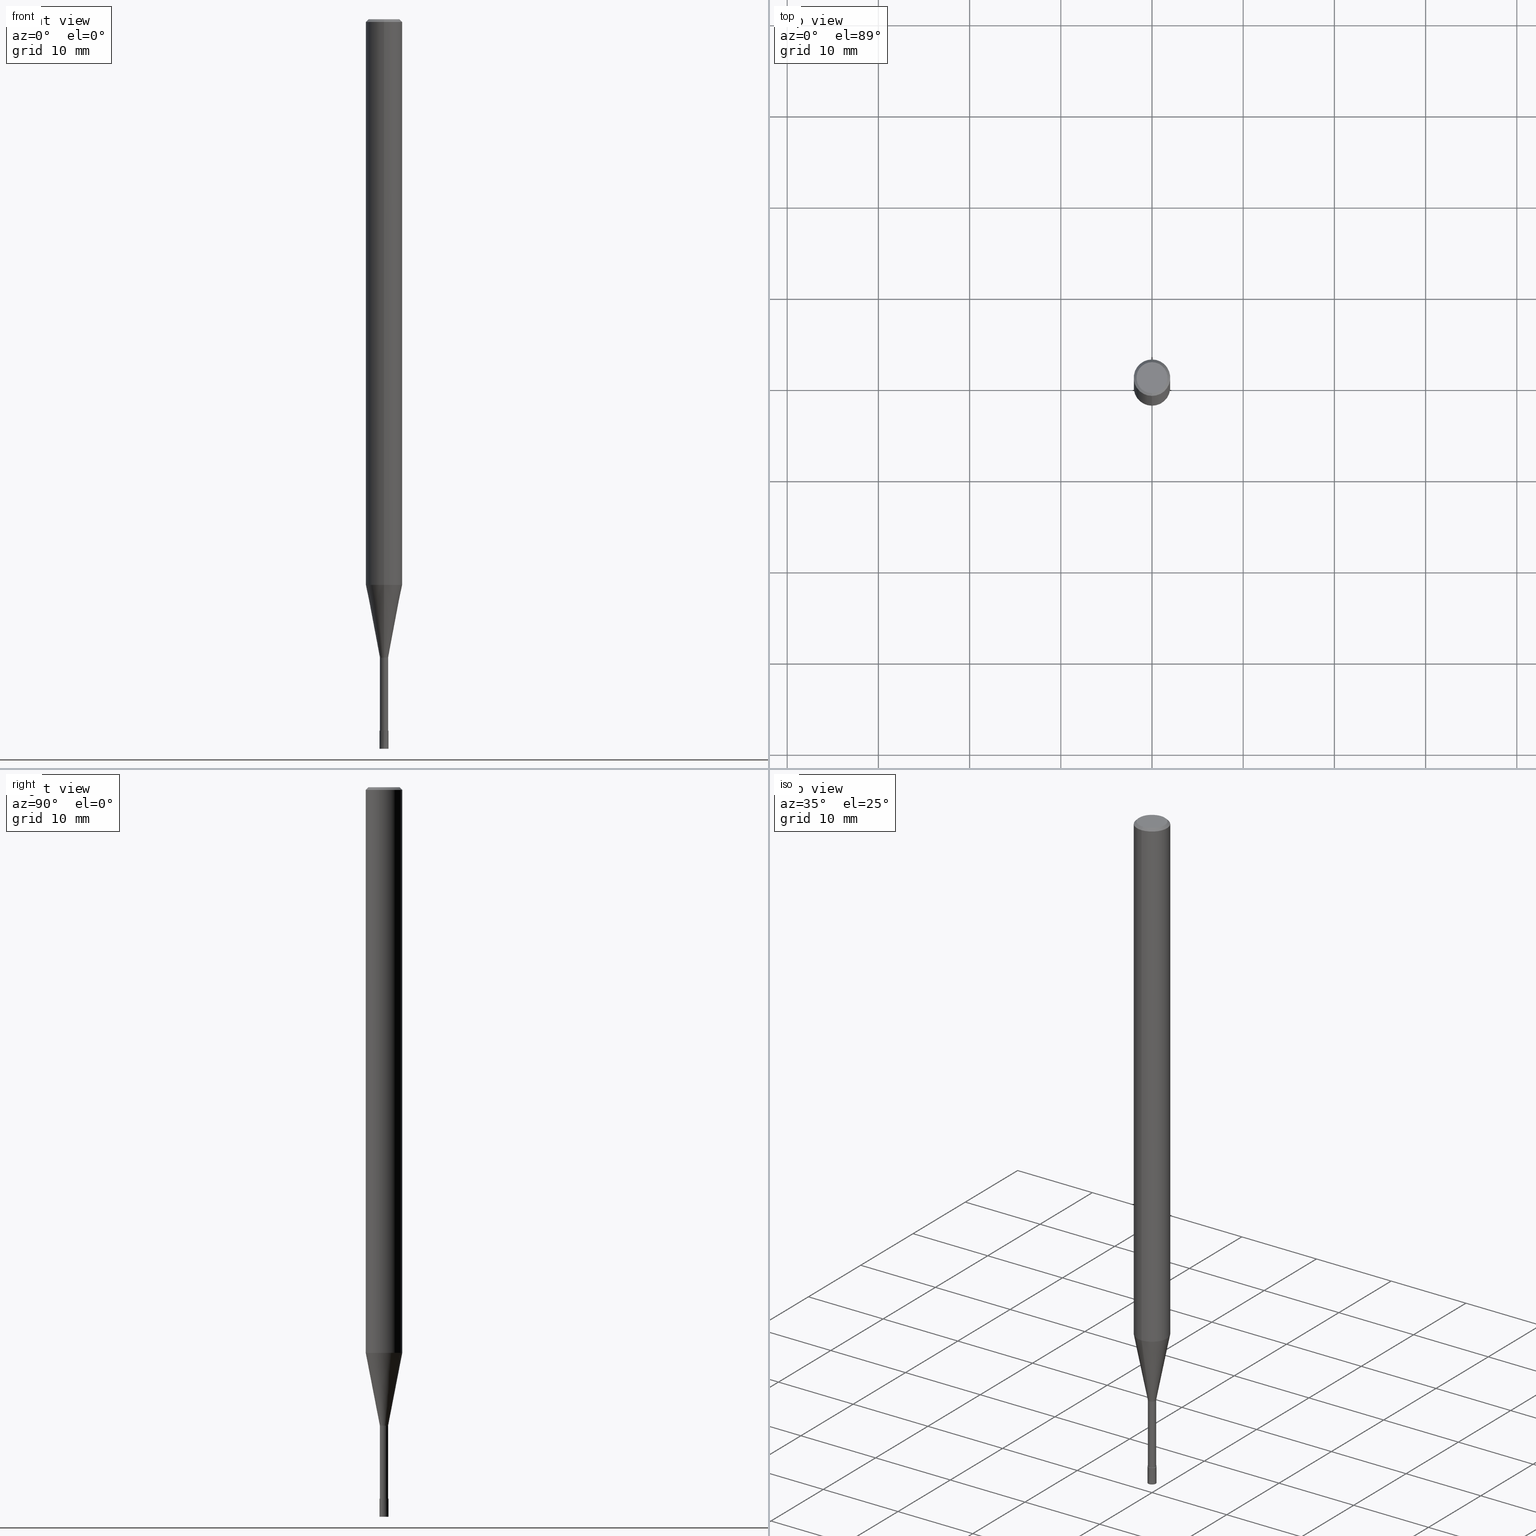
[diagram: canonical four-view strip — front | top / right | iso, engineering-drawing reading convention]
A machine part, canonical four-view strip (front | top / right | iso — engineering-drawing reading convention). The complete STEP part file that produces these views, byte-faithful:
ISO-10303-21;
HEADER;
FILE_DESCRIPTION(('no description'),'unknown implementation level');
FILE_NAME('CPRL2010-10-Huellk.stp','  ',('CIMSOURCE GmbH'),('CADClick - KiM GmbH - www.kimweb.de'),'unknown preprocess','ACIS','unknown authorization');
FILE_SCHEMA(('automotive_design'));
ENDSEC;
DATA;
#1=MECHANICAL_DESIGN_GEOMETRIC_PRESENTATION_REPRESENTATION(' ',(#14,#15,#16,#17,#18,#19,#20,#21,#22,#23,#24,#25,#26,#27,#28,#29,#30,#31,#32,#33,#34,#35,#36,#37,#38,#39,#40,#41,#42,#43,#44,#45,#46,#47,#48,#49,#50,#51,#52,#53,#54,#55,#56,#57,#58,#59,#60,#61,#62,#63,#64,#65,#66,#67,#68,#69,#70,#71,#72),#10);
#2=PRODUCT_DEFINITION_CONTEXT('',#73,'design');
#3=APPLICATION_PROTOCOL_DEFINITION('INTERNATIONAL STANDARD','automotive_design',1994,#73);
#4=PRODUCT_CATEGORY_RELATIONSHIP('NONE','NONE',#74,#75);
#5=SHAPE_DEFINITION_REPRESENTATION(#76,#77);
#6=PRODUCT_DEFINITION_CONTEXT('',#78,'design');
#7=APPLICATION_PROTOCOL_DEFINITION('INTERNATIONAL STANDARD','automotive_design',1994,#78);
#8=PRODUCT_CATEGORY_RELATIONSHIP('NONE','NONE',#79,#80);
#9=SHAPE_DEFINITION_REPRESENTATION(#81,#82);
#10= (GEOMETRIC_REPRESENTATION_CONTEXT(3)GLOBAL_UNCERTAINTY_ASSIGNED_CONTEXT((#85))GLOBAL_UNIT_ASSIGNED_CONTEXT((#87,#88,#89))REPRESENTATION_CONTEXT('NONE','WORKSPACE'));
#14=STYLED_ITEM('',(#91),#92);
#15=STYLED_ITEM('',(#93),#94);
#16=STYLED_ITEM('',(#95),#96);
#17=STYLED_ITEM('',(#97),#98);
#18=STYLED_ITEM('',(#99),#100);
#19=STYLED_ITEM('',(#101),#102);
#20=STYLED_ITEM('',(#103),#104);
#21=STYLED_ITEM('',(#105),#106);
#22=STYLED_ITEM('',(#107),#108);
#23=STYLED_ITEM('',(#109),#110);
#24=STYLED_ITEM('',(#111),#112);
#25=STYLED_ITEM('',(#113),#114);
#26=STYLED_ITEM('',(#115),#116);
#27=STYLED_ITEM('',(#117),#118);
#28=STYLED_ITEM('',(#119),#120);
#29=STYLED_ITEM('',(#121),#122);
#30=STYLED_ITEM('',(#123),#124);
#31=STYLED_ITEM('',(#125),#126);
#32=STYLED_ITEM('',(#127),#128);
#33=STYLED_ITEM('',(#129),#130);
#34=STYLED_ITEM('',(#131),#132);
#35=STYLED_ITEM('',(#133),#134);
#36=STYLED_ITEM('',(#135),#136);
#37=STYLED_ITEM('',(#137),#138);
#38=STYLED_ITEM('',(#139),#140);
#39=STYLED_ITEM('',(#141),#142);
#40=STYLED_ITEM('',(#143),#144);
#41=STYLED_ITEM('',(#145),#146);
#42=STYLED_ITEM('',(#147),#148);
#43=STYLED_ITEM('',(#149),#150);
#44=STYLED_ITEM('',(#151),#152);
#45=STYLED_ITEM('',(#153),#154);
#46=STYLED_ITEM('',(#155),#156);
#47=STYLED_ITEM('',(#157),#158);
#48=STYLED_ITEM('',(#159),#160);
#49=STYLED_ITEM('',(#161),#162);
#50=STYLED_ITEM('',(#163),#164);
#51=STYLED_ITEM('',(#165),#166);
#52=STYLED_ITEM('',(#167),#168);
#53=STYLED_ITEM('',(#169),#170);
#54=STYLED_ITEM('',(#171),#172);
#55=STYLED_ITEM('',(#173),#174);
#56=STYLED_ITEM('',(#175),#176);
#57=STYLED_ITEM('',(#177),#178);
#58=STYLED_ITEM('',(#179),#180);
#59=STYLED_ITEM('',(#181),#182);
#60=STYLED_ITEM('',(#183),#184);
#61=STYLED_ITEM('',(#185),#186);
#62=STYLED_ITEM('',(#187),#188);
#63=STYLED_ITEM('',(#189),#190);
#64=STYLED_ITEM('',(#191),#192);
#65=STYLED_ITEM('',(#193),#194);
#66=STYLED_ITEM('',(#195),#196);
#67=STYLED_ITEM('',(#197),#198);
#68=STYLED_ITEM('',(#199),#200);
#69=STYLED_ITEM('',(#201),#202);
#70=STYLED_ITEM('',(#203),#204);
#71=STYLED_ITEM('',(#205),#206);
#72=STYLED_ITEM('',(#207),#208);
#73=APPLICATION_CONTEXT(' ');
#74=PRODUCT_CATEGORY('part','NONE');
#75=PRODUCT_RELATED_PRODUCT_CATEGORY('detail',' ',(#209));
#76=PRODUCT_DEFINITION_SHAPE('NONE','NONE',#210);
#77=ADVANCED_BREP_SHAPE_REPRESENTATION('1',(#104,#211),#10);
#78=APPLICATION_CONTEXT(' ');
#79=PRODUCT_CATEGORY('part','NONE');
#80=PRODUCT_RELATED_PRODUCT_CATEGORY('detail',' ',(#212));
#81=PRODUCT_DEFINITION_SHAPE('NONE','NONE',#213);
#82=ADVANCED_BREP_SHAPE_REPRESENTATION('2',(#208,#214),#10);
#85=UNCERTAINTY_MEASURE_WITH_UNIT(LENGTH_MEASURE(1.0E-006),#87,'','');
#87= (CONVERSION_BASED_UNIT('MILLIMETRE',#217)LENGTH_UNIT()NAMED_UNIT(#220));
#88= (NAMED_UNIT(#222)PLANE_ANGLE_UNIT()SI_UNIT($,.RADIAN.));
#89= (NAMED_UNIT(#222)SOLID_ANGLE_UNIT()SI_UNIT($,.STERADIAN.));
#91=PRESENTATION_STYLE_ASSIGNMENT((#228));
#92=ADVANCED_FACE('',(#229),#230,.T.);
#93=PRESENTATION_STYLE_ASSIGNMENT((#231));
#94=EDGE_CURVE('',#122,#96,#232,.T.);
#95=PRESENTATION_STYLE_ASSIGNMENT((#233));
#96=VERTEX_POINT('',#234);
#97=PRESENTATION_STYLE_ASSIGNMENT((#235));
#98=VERTEX_POINT('',#236);
#99=PRESENTATION_STYLE_ASSIGNMENT((#237));
#100=EDGE_CURVE('',#106,#98,#238,.T.);
#101=PRESENTATION_STYLE_ASSIGNMENT((#239));
#102=ADVANCED_FACE('',(#240),#241,.T.);
#103=PRESENTATION_STYLE_ASSIGNMENT((#242));
#104=MANIFOLD_SOLID_BREP('1',#243);
#105=PRESENTATION_STYLE_ASSIGNMENT((#244));
#106=VERTEX_POINT('',#245);
#107=PRESENTATION_STYLE_ASSIGNMENT((#246));
#108=EDGE_CURVE('',#200,#96,#247,.T.);
#109=PRESENTATION_STYLE_ASSIGNMENT((#248));
#110=ADVANCED_FACE('',(#249,#250),#251,.T.);
#111=PRESENTATION_STYLE_ASSIGNMENT((#252));
#112=EDGE_CURVE('',#200,#176,#253,.T.);
#113=PRESENTATION_STYLE_ASSIGNMENT((#254));
#114=ADVANCED_FACE('',(#255),#256,.T.);
#115=PRESENTATION_STYLE_ASSIGNMENT((#257));
#116=EDGE_CURVE('',#158,#122,#258,.T.);
#117=PRESENTATION_STYLE_ASSIGNMENT((#259));
#118=EDGE_CURVE('',#164,#146,#260,.T.);
#119=PRESENTATION_STYLE_ASSIGNMENT((#261));
#120=ADVANCED_FACE('',(#262),#263,.T.);
#121=PRESENTATION_STYLE_ASSIGNMENT((#264));
#122=VERTEX_POINT('',#265);
#123=PRESENTATION_STYLE_ASSIGNMENT((#266));
#124=EDGE_CURVE('',#136,#158,#267,.T.);
#125=PRESENTATION_STYLE_ASSIGNMENT((#268));
#126=ADVANCED_FACE('',(#269),#270,.T.);
#127=PRESENTATION_STYLE_ASSIGNMENT((#271));
#128=EDGE_CURVE('',#182,#146,#272,.T.);
#129=PRESENTATION_STYLE_ASSIGNMENT((#273));
#130=ADVANCED_FACE('',(#274),#275,.T.);
#131=PRESENTATION_STYLE_ASSIGNMENT((#276));
#132=EDGE_CURVE('',#176,#200,#277,.T.);
#133=PRESENTATION_STYLE_ASSIGNMENT((#278));
#134=EDGE_CURVE('',#204,#106,#279,.T.);
#135=PRESENTATION_STYLE_ASSIGNMENT((#280));
#136=VERTEX_POINT('',#281);
#137=PRESENTATION_STYLE_ASSIGNMENT((#282));
#138=VERTEX_POINT('',#283);
#139=PRESENTATION_STYLE_ASSIGNMENT((#284));
#140=EDGE_CURVE('',#204,#206,#285,.T.);
#141=PRESENTATION_STYLE_ASSIGNMENT((#286));
#142=EDGE_CURVE('',#182,#184,#287,.T.);
#143=PRESENTATION_STYLE_ASSIGNMENT((#288));
#144=ADVANCED_FACE('',(#289),#290,.T.);
#145=PRESENTATION_STYLE_ASSIGNMENT((#291));
#146=VERTEX_POINT('',#292);
#147=PRESENTATION_STYLE_ASSIGNMENT((#293));
#148=VERTEX_POINT('',#294);
#149=PRESENTATION_STYLE_ASSIGNMENT((#295));
#150=EDGE_CURVE('',#206,#204,#296,.T.);
#151=PRESENTATION_STYLE_ASSIGNMENT((#297));
#152=ADVANCED_FACE('',(#298),#299,.T.);
#153=PRESENTATION_STYLE_ASSIGNMENT((#300));
#154=EDGE_CURVE('',#148,#138,#301,.T.);
#155=PRESENTATION_STYLE_ASSIGNMENT((#302));
#156=ADVANCED_FACE('',(#303),#304,.T.);
#157=PRESENTATION_STYLE_ASSIGNMENT((#305));
#158=VERTEX_POINT('',#306);
#159=PRESENTATION_STYLE_ASSIGNMENT((#307));
#160=EDGE_CURVE('',#122,#176,#308,.T.);
#161=PRESENTATION_STYLE_ASSIGNMENT((#309));
#162=EDGE_CURVE('',#146,#148,#310,.T.);
#163=PRESENTATION_STYLE_ASSIGNMENT((#311));
#164=VERTEX_POINT('',#312);
#165=PRESENTATION_STYLE_ASSIGNMENT((#313));
#166=EDGE_CURVE('',#138,#182,#314,.T.);
#167=PRESENTATION_STYLE_ASSIGNMENT((#315));
#168=ADVANCED_FACE('',(#316),#317,.T.);
#169=PRESENTATION_STYLE_ASSIGNMENT((#318));
#170=EDGE_CURVE('',#96,#122,#319,.T.);
#171=PRESENTATION_STYLE_ASSIGNMENT((#320));
#172=ADVANCED_FACE('',(#321),#322,.T.);
#173=PRESENTATION_STYLE_ASSIGNMENT((#323));
#174=EDGE_CURVE('',#158,#136,#324,.T.);
#175=PRESENTATION_STYLE_ASSIGNMENT((#325));
#176=VERTEX_POINT('',#326);
#177=PRESENTATION_STYLE_ASSIGNMENT((#327));
#178=ADVANCED_FACE('',(#328),#329,.T.);
#179=PRESENTATION_STYLE_ASSIGNMENT((#330));
#180=ADVANCED_FACE('',(#331),#332,.T.);
#181=PRESENTATION_STYLE_ASSIGNMENT((#333));
#182=VERTEX_POINT('',#334);
#183=PRESENTATION_STYLE_ASSIGNMENT((#335));
#184=VERTEX_POINT('',#336);
#185=PRESENTATION_STYLE_ASSIGNMENT((#337));
#186=EDGE_CURVE('',#164,#184,#338,.T.);
#187=PRESENTATION_STYLE_ASSIGNMENT((#339));
#188=EDGE_CURVE('',#138,#148,#340,.T.);
#189=PRESENTATION_STYLE_ASSIGNMENT((#341));
#190=EDGE_CURVE('',#98,#206,#342,.T.);
#191=PRESENTATION_STYLE_ASSIGNMENT((#343));
#192=EDGE_CURVE('',#98,#106,#344,.T.);
#193=PRESENTATION_STYLE_ASSIGNMENT((#345));
#194=ADVANCED_FACE('',(#346),#347,.T.);
#195=PRESENTATION_STYLE_ASSIGNMENT((#348));
#196=EDGE_CURVE('',#96,#136,#349,.T.);
#197=PRESENTATION_STYLE_ASSIGNMENT((#350));
#198=EDGE_CURVE('',#146,#182,#351,.T.);
#199=PRESENTATION_STYLE_ASSIGNMENT((#352));
#200=VERTEX_POINT('',#353);
#201=PRESENTATION_STYLE_ASSIGNMENT((#354));
#202=EDGE_CURVE('',#184,#164,#355,.T.);
#203=PRESENTATION_STYLE_ASSIGNMENT((#356));
#204=VERTEX_POINT('',#357);
#205=PRESENTATION_STYLE_ASSIGNMENT((#358));
#206=VERTEX_POINT('',#359);
#207=PRESENTATION_STYLE_ASSIGNMENT((#360));
#208=MANIFOLD_SOLID_BREP('2',#361);
#209=PRODUCT('1','1','PART-1-DESC',(#362));
#210=PRODUCT_DEFINITION('NONE','NONE',#363,#2);
#211=AXIS2_PLACEMENT_3D('',#364,#365,#366);
#212=PRODUCT('2','2','PART-2-DESC',(#367));
#213=PRODUCT_DEFINITION('NONE','NONE',#368,#6);
#214=AXIS2_PLACEMENT_3D('',#369,#370,#371);
#217=LENGTH_MEASURE_WITH_UNIT(LENGTH_MEASURE(1.0),#372);
#220=DIMENSIONAL_EXPONENTS(1.0,0.0,0.0,0.0,0.0,0.0,0.0);
#222=DIMENSIONAL_EXPONENTS(0.0,0.0,0.0,0.0,0.0,0.0,0.0);
#228=SURFACE_STYLE_USAGE(.BOTH.,#373);
#229=FACE_OUTER_BOUND('',#374,.T.);
#230=CYLINDRICAL_SURFACE('',#375,0.44995);
#231=CURVE_STYLE('',#376,POSITIVE_LENGTH_MEASURE(1.0E-006),#377);
#232=CIRCLE('',#378,0.44995);
#233=POINT_STYLE(' ',#379,POSITIVE_LENGTH_MEASURE(1.0E-006),#380);
#234=CARTESIAN_POINT('',(0.0,0.44995,-70.0));
#235=POINT_STYLE(' ',#381,POSITIVE_LENGTH_MEASURE(1.0E-006),#382);
#236=CARTESIAN_POINT('',(6.12303176911189E-017,-0.5,-80.0));
#237=CURVE_STYLE('',#383,POSITIVE_LENGTH_MEASURE(1.0E-006),#384);
#238=CIRCLE('',#385,0.5);
#239=SURFACE_STYLE_USAGE(.BOTH.,#386);
#240=FACE_OUTER_BOUND('',#387,.T.);
#241=PLANE('',#388);
#242=SURFACE_STYLE_USAGE(.BOTH.,#389);
#243=CLOSED_SHELL('',(#92,#194,#180,#156,#110,#168,#126,#172,#144,#120,#178));
#244=POINT_STYLE(' ',#390,POSITIVE_LENGTH_MEASURE(1.0E-006),#391);
#245=CARTESIAN_POINT('',(0.0,0.5,-80.0));
#246=CURVE_STYLE('',#392,POSITIVE_LENGTH_MEASURE(1.0E-006),#393);
#247=LINE('',#394,#395);
#248=SURFACE_STYLE_USAGE(.BOTH.,#396);
#249=FACE_OUTER_BOUND('',#397,.T.);
#250=FACE_BOUND('',#398,.T.);
#251=PLANE('',#399);
#252=CURVE_STYLE('',#400,POSITIVE_LENGTH_MEASURE(1.0E-006),#401);
#253=CIRCLE('',#402,1.99995);
#254=SURFACE_STYLE_USAGE(.BOTH.,#403);
#255=FACE_OUTER_BOUND('',#404,.T.);
#256=CONICAL_SURFACE('',#405,0.49995,4.99999999583278E-005);
#257=CURVE_STYLE('',#406,POSITIVE_LENGTH_MEASURE(1.0E-006),#407);
#258=LINE('',#408,#409);
#259=CURVE_STYLE('',#410,POSITIVE_LENGTH_MEASURE(1.0E-006),#411);
#260=LINE('',#412,#413);
#261=SURFACE_STYLE_USAGE(.BOTH.,#414);
#262=FACE_OUTER_BOUND('',#415,.T.);
#263=CYLINDRICAL_SURFACE('',#416,0.44995);
#264=POINT_STYLE(' ',#417,POSITIVE_LENGTH_MEASURE(1.0E-006),#418);
#265=CARTESIAN_POINT('',(5.51011628902379E-017,-0.44995,-70.0));
#266=CURVE_STYLE('',#419,POSITIVE_LENGTH_MEASURE(1.0E-006),#420);
#267=CIRCLE('',#421,0.44995);
#268=SURFACE_STYLE_USAGE(.BOTH.,#422);
#269=FACE_OUTER_BOUND('',#423,.T.);
#270=CONICAL_SURFACE('',#424,1.85,0.785398163397453);
#271=CURVE_STYLE('',#425,POSITIVE_LENGTH_MEASURE(1.0E-006),#426);
#272=CIRCLE('',#427,2.0);
#273=SURFACE_STYLE_USAGE(.BOTH.,#428);
#274=FACE_OUTER_BOUND('',#429,.T.);
#275=PLANE('',#430);
#276=CURVE_STYLE('',#431,POSITIVE_LENGTH_MEASURE(1.0E-006),#432);
#277=CIRCLE('',#433,1.99995);
#278=CURVE_STYLE('',#434,POSITIVE_LENGTH_MEASURE(1.0E-006),#435);
#279=LINE('',#436,#437);
#280=POINT_STYLE(' ',#438,POSITIVE_LENGTH_MEASURE(1.0E-006),#439);
#281=CARTESIAN_POINT('',(0.0,0.44995,-78.0));
#282=POINT_STYLE(' ',#440,POSITIVE_LENGTH_MEASURE(1.0E-006),#441);
#283=CARTESIAN_POINT('',(2.44921270764475E-016,-2.0,-62.026));
#284=CURVE_STYLE('',#442,POSITIVE_LENGTH_MEASURE(1.0E-006),#443);
#285=CIRCLE('',#444,0.4999);
#286=CURVE_STYLE('',#445,POSITIVE_LENGTH_MEASURE(1.0E-006),#446);
#287=LINE('',#447,#448);
#288=SURFACE_STYLE_USAGE(.BOTH.,#449);
#289=FACE_OUTER_BOUND('',#450,.T.);
#290=CONICAL_SURFACE('',#451,1.22495,0.191987597119561);
#291=POINT_STYLE(' ',#452,POSITIVE_LENGTH_MEASURE(1.0E-006),#453);
#292=CARTESIAN_POINT('',(0.0,2.0,-0.299999999999997));
#293=POINT_STYLE(' ',#454,POSITIVE_LENGTH_MEASURE(1.0E-006),#455);
#294=CARTESIAN_POINT('',(0.0,2.0,-62.026));
#295=CURVE_STYLE('',#456,POSITIVE_LENGTH_MEASURE(1.0E-006),#457);
#296=CIRCLE('',#458,0.4999);
#297=SURFACE_STYLE_USAGE(.BOTH.,#459);
#298=FACE_OUTER_BOUND('',#460,.T.);
#299=CONICAL_SURFACE('',#461,0.49995,4.99999999583278E-005);
#300=CURVE_STYLE('',#462,POSITIVE_LENGTH_MEASURE(1.0E-006),#463);
#301=CIRCLE('',#464,2.0);
#302=SURFACE_STYLE_USAGE(.BOTH.,#465);
#303=FACE_OUTER_BOUND('',#466,.T.);
#304=CONICAL_SURFACE('',#467,1.85,0.785398163397453);
#305=POINT_STYLE(' ',#468,POSITIVE_LENGTH_MEASURE(1.0E-006),#469);
#306=CARTESIAN_POINT('',(5.51011628902379E-017,-0.44995,-78.0));
#307=CURVE_STYLE('',#470,POSITIVE_LENGTH_MEASURE(1.0E-006),#471);
#308=LINE('',#472,#473);
#309=CURVE_STYLE('',#474,POSITIVE_LENGTH_MEASURE(1.0E-006),#475);
#310=LINE('',#476,#477);
#311=POINT_STYLE(' ',#478,POSITIVE_LENGTH_MEASURE(1.0E-006),#479);
#312=CARTESIAN_POINT('',(0.0,1.7,0.0));
#313=CURVE_STYLE('',#480,POSITIVE_LENGTH_MEASURE(1.0E-006),#481);
#314=LINE('',#482,#483);
#315=SURFACE_STYLE_USAGE(.BOTH.,#484);
#316=FACE_OUTER_BOUND('',#485,.T.);
#317=PLANE('',#486);
#318=CURVE_STYLE('',#487,POSITIVE_LENGTH_MEASURE(1.0E-006),#488);
#319=CIRCLE('',#489,0.44995);
#320=SURFACE_STYLE_USAGE(.BOTH.,#490);
#321=FACE_OUTER_BOUND('',#491,.T.);
#322=CYLINDRICAL_SURFACE('',#492,2.0);
#323=CURVE_STYLE('',#493,POSITIVE_LENGTH_MEASURE(1.0E-006),#494);
#324=CIRCLE('',#495,0.44995);
#325=POINT_STYLE(' ',#496,POSITIVE_LENGTH_MEASURE(1.0E-006),#497);
#326=CARTESIAN_POINT('',(2.44915147732706E-016,-1.99995,-62.026));
#327=SURFACE_STYLE_USAGE(.BOTH.,#498);
#328=FACE_OUTER_BOUND('',#499,.T.);
#329=PLANE('',#500);
#330=SURFACE_STYLE_USAGE(.BOTH.,#501);
#331=FACE_OUTER_BOUND('',#502,.T.);
#332=CYLINDRICAL_SURFACE('',#503,2.0);
#333=POINT_STYLE(' ',#504,POSITIVE_LENGTH_MEASURE(1.0E-006),#505);
#334=CARTESIAN_POINT('',(2.44921270764475E-016,-2.0,-0.299999999999997));
#335=POINT_STYLE(' ',#506,POSITIVE_LENGTH_MEASURE(1.0E-006),#507);
#336=CARTESIAN_POINT('',(2.08183080149804E-016,-1.7,0.0));
#337=CURVE_STYLE('',#508,POSITIVE_LENGTH_MEASURE(1.0E-006),#509);
#338=CIRCLE('',#510,1.7);
#339=CURVE_STYLE('',#511,POSITIVE_LENGTH_MEASURE(1.0E-006),#512);
#340=CIRCLE('',#513,2.0);
#341=CURVE_STYLE('',#514,POSITIVE_LENGTH_MEASURE(1.0E-006),#515);
#342=LINE('',#516,#517);
#343=CURVE_STYLE('',#518,POSITIVE_LENGTH_MEASURE(1.0E-006),#519);
#344=CIRCLE('',#520,0.5);
#345=SURFACE_STYLE_USAGE(.BOTH.,#521);
#346=FACE_OUTER_BOUND('',#522,.T.);
#347=CONICAL_SURFACE('',#523,1.22495,0.191987597119561);
#348=CURVE_STYLE('',#524,POSITIVE_LENGTH_MEASURE(1.0E-006),#525);
#349=LINE('',#526,#527);
#350=CURVE_STYLE('',#528,POSITIVE_LENGTH_MEASURE(1.0E-006),#529);
#351=CIRCLE('',#530,2.0);
#352=POINT_STYLE(' ',#531,POSITIVE_LENGTH_MEASURE(1.0E-006),#532);
#353=CARTESIAN_POINT('',(0.0,1.99995,-62.026));
#354=CURVE_STYLE('',#533,POSITIVE_LENGTH_MEASURE(1.0E-006),#534);
#355=CIRCLE('',#535,1.7);
#356=POINT_STYLE(' ',#536,POSITIVE_LENGTH_MEASURE(1.0E-006),#537);
#357=CARTESIAN_POINT('',(0.0,0.4999,-78.0));
#358=POINT_STYLE(' ',#538,POSITIVE_LENGTH_MEASURE(1.0E-006),#539);
#359=CARTESIAN_POINT('',(6.12180716275807E-017,-0.4999,-78.0));
#360=SURFACE_STYLE_USAGE(.BOTH.,#540);
#361=CLOSED_SHELL('',(#152,#130,#114,#102));
#362=PRODUCT_CONTEXT('',#73,'mechanical');
#363=PRODUCT_DEFINITION_FORMATION_WITH_SPECIFIED_SOURCE(' ','NONE',#209,.NOT_KNOWN.);
#364=CARTESIAN_POINT('',(0.0,0.0,0.0));
#365=DIRECTION('',(0.0,0.0,1.0));
#366=DIRECTION('',(1.0,0.0,0.0));
#367=PRODUCT_CONTEXT('',#78,'mechanical');
#368=PRODUCT_DEFINITION_FORMATION_WITH_SPECIFIED_SOURCE(' ','NONE',#212,.NOT_KNOWN.);
#369=CARTESIAN_POINT('',(0.0,0.0,0.0));
#370=DIRECTION('',(0.0,0.0,1.0));
#371=DIRECTION('',(1.0,0.0,0.0));
#372= (NAMED_UNIT(#220)LENGTH_UNIT()SI_UNIT(.MILLI.,.METRE.));
#373=SURFACE_SIDE_STYLE('',(#542));
#374=EDGE_LOOP('',(#543,#544,#545,#546));
#375=AXIS2_PLACEMENT_3D('',#547,#548,#549);
#376=DRAUGHTING_PRE_DEFINED_CURVE_FONT('continuous');
#377=COLOUR_RGB('',0.498039215803146,0.498039215803146,0.498039215803146);
#378=AXIS2_PLACEMENT_3D('',#550,#551,#552);
#379=PRE_DEFINED_MARKER('');
#380=COLOUR_RGB('',0.498039215803146,0.498039215803146,0.498039215803146);
#381=PRE_DEFINED_MARKER('');
#382=COLOUR_RGB('',0.800000011920929,0.800000011920929,0.800000011920929);
#383=DRAUGHTING_PRE_DEFINED_CURVE_FONT('continuous');
#384=COLOUR_RGB('',0.800000011920929,0.800000011920929,0.800000011920929);
#385=AXIS2_PLACEMENT_3D('',#553,#554,#555);
#386=SURFACE_SIDE_STYLE('',(#556));
#387=EDGE_LOOP('',(#557,#558));
#388=AXIS2_PLACEMENT_3D('',#559,#560,#561);
#389=SURFACE_SIDE_STYLE('',(#562));
#390=PRE_DEFINED_MARKER('');
#391=COLOUR_RGB('',0.800000011920929,0.800000011920929,0.800000011920929);
#392=DRAUGHTING_PRE_DEFINED_CURVE_FONT('continuous');
#393=COLOUR_RGB('',0.498039215803146,0.498039215803146,0.498039215803146);
#394=CARTESIAN_POINT('',(-1.50008155311472E-016,1.22495,-66.013));
#395=VECTOR('',#563,1.0);
#396=SURFACE_SIDE_STYLE('',(#564));
#397=EDGE_LOOP('',(#565,#566));
#398=EDGE_LOOP('',(#567,#568));
#399=AXIS2_PLACEMENT_3D('',#569,#570,#571);
#400=DRAUGHTING_PRE_DEFINED_CURVE_FONT('continuous');
#401=COLOUR_RGB('',0.498039215803146,0.498039215803146,0.498039215803146);
#402=AXIS2_PLACEMENT_3D('',#572,#573,#574);
#403=SURFACE_SIDE_STYLE('',(#575));
#404=EDGE_LOOP('',(#576,#577,#578,#579));
#405=AXIS2_PLACEMENT_3D('',#580,#581,#582);
#406=DRAUGHTING_PRE_DEFINED_CURVE_FONT('continuous');
#407=COLOUR_RGB('',0.498039215803146,0.498039215803146,0.498039215803146);
#408=CARTESIAN_POINT('',(5.51011628902379E-017,-0.44995,-74.0));
#409=VECTOR('',#583,1.0);
#410=DRAUGHTING_PRE_DEFINED_CURVE_FONT('continuous');
#411=COLOUR_RGB('',0.498039215803146,0.498039215803146,0.498039215803146);
#412=CARTESIAN_POINT('',(-2.2655217545714E-016,1.85,-0.149999999999999));
#413=VECTOR('',#584,1.0);
#414=SURFACE_SIDE_STYLE('',(#585));
#415=EDGE_LOOP('',(#586,#587,#588,#589));
#416=AXIS2_PLACEMENT_3D('',#590,#591,#592);
#417=PRE_DEFINED_MARKER('');
#418=COLOUR_RGB('',0.498039215803146,0.498039215803146,0.498039215803146);
#419=DRAUGHTING_PRE_DEFINED_CURVE_FONT('continuous');
#420=COLOUR_RGB('',0.498039215803146,0.498039215803146,0.498039215803146);
#421=AXIS2_PLACEMENT_3D('',#593,#594,#595);
#422=SURFACE_SIDE_STYLE('',(#596));
#423=EDGE_LOOP('',(#597,#598,#599,#600));
#424=AXIS2_PLACEMENT_3D('',#601,#602,#603);
#425=DRAUGHTING_PRE_DEFINED_CURVE_FONT('continuous');
#426=COLOUR_RGB('',0.498039215803146,0.498039215803146,0.498039215803146);
#427=AXIS2_PLACEMENT_3D('',#604,#605,#606);
#428=SURFACE_SIDE_STYLE('',(#607));
#429=EDGE_LOOP('',(#608,#609));
#430=AXIS2_PLACEMENT_3D('',#610,#611,#612);
#431=DRAUGHTING_PRE_DEFINED_CURVE_FONT('continuous');
#432=COLOUR_RGB('',0.498039215803146,0.498039215803146,0.498039215803146);
#433=AXIS2_PLACEMENT_3D('',#613,#614,#615);
#434=DRAUGHTING_PRE_DEFINED_CURVE_FONT('continuous');
#435=COLOUR_RGB('',0.800000011920929,0.800000011920929,0.800000011920929);
#436=CARTESIAN_POINT('',(-6.12241946593498E-017,0.49995,-79.0));
#437=VECTOR('',#616,1.0);
#438=PRE_DEFINED_MARKER('');
#439=COLOUR_RGB('',0.498039215803146,0.498039215803146,0.498039215803146);
#440=PRE_DEFINED_MARKER('');
#441=COLOUR_RGB('',0.498039215803146,0.498039215803146,0.498039215803146);
#442=DRAUGHTING_PRE_DEFINED_CURVE_FONT('continuous');
#443=COLOUR_RGB('',0.800000011920929,0.800000011920929,0.800000011920929);
#444=AXIS2_PLACEMENT_3D('',#617,#618,#619);
#445=DRAUGHTING_PRE_DEFINED_CURVE_FONT('continuous');
#446=COLOUR_RGB('',0.498039215803146,0.498039215803146,0.498039215803146);
#447=CARTESIAN_POINT('',(2.2655217545714E-016,-1.85,-0.149999999999999));
#448=VECTOR('',#620,1.0);
#449=SURFACE_SIDE_STYLE('',(#621));
#450=EDGE_LOOP('',(#622,#623,#624,#625));
#451=AXIS2_PLACEMENT_3D('',#626,#627,#628);
#452=PRE_DEFINED_MARKER('');
#453=COLOUR_RGB('',0.498039215803146,0.498039215803146,0.498039215803146);
#454=PRE_DEFINED_MARKER('');
#455=COLOUR_RGB('',0.498039215803146,0.498039215803146,0.498039215803146);
#456=DRAUGHTING_PRE_DEFINED_CURVE_FONT('continuous');
#457=COLOUR_RGB('',0.800000011920929,0.800000011920929,0.800000011920929);
#458=AXIS2_PLACEMENT_3D('',#629,#630,#631);
#459=SURFACE_SIDE_STYLE('',(#632));
#460=EDGE_LOOP('',(#633,#634,#635,#636));
#461=AXIS2_PLACEMENT_3D('',#637,#638,#639);
#462=DRAUGHTING_PRE_DEFINED_CURVE_FONT('continuous');
#463=COLOUR_RGB('',0.498039215803146,0.498039215803146,0.498039215803146);
#464=AXIS2_PLACEMENT_3D('',#640,#641,#642);
#465=SURFACE_SIDE_STYLE('',(#643));
#466=EDGE_LOOP('',(#644,#645,#646,#647));
#467=AXIS2_PLACEMENT_3D('',#648,#649,#650);
#468=PRE_DEFINED_MARKER('');
#469=COLOUR_RGB('',0.498039215803146,0.498039215803146,0.498039215803146);
#470=DRAUGHTING_PRE_DEFINED_CURVE_FONT('continuous');
#471=COLOUR_RGB('',0.498039215803146,0.498039215803146,0.498039215803146);
#472=CARTESIAN_POINT('',(1.50008155311472E-016,-1.22495,-66.013));
#473=VECTOR('',#651,1.0);
#474=DRAUGHTING_PRE_DEFINED_CURVE_FONT('continuous');
#475=COLOUR_RGB('',0.498039215803146,0.498039215803146,0.498039215803146);
#476=CARTESIAN_POINT('',(-2.44921270764475E-016,2.0,-31.163));
#477=VECTOR('',#652,1.0);
#478=PRE_DEFINED_MARKER('');
#479=COLOUR_RGB('',0.498039215803146,0.498039215803146,0.498039215803146);
#480=DRAUGHTING_PRE_DEFINED_CURVE_FONT('continuous');
#481=COLOUR_RGB('',0.498039215803146,0.498039215803146,0.498039215803146);
#482=CARTESIAN_POINT('',(2.44921270764475E-016,-2.0,-31.163));
#483=VECTOR('',#653,1.0);
#484=SURFACE_SIDE_STYLE('',(#654));
#485=EDGE_LOOP('',(#655,#656));
#486=AXIS2_PLACEMENT_3D('',#657,#658,#659);
#487=DRAUGHTING_PRE_DEFINED_CURVE_FONT('continuous');
#488=COLOUR_RGB('',0.498039215803146,0.498039215803146,0.498039215803146);
#489=AXIS2_PLACEMENT_3D('',#660,#661,#662);
#490=SURFACE_SIDE_STYLE('',(#663));
#491=EDGE_LOOP('',(#664,#665,#666,#667));
#492=AXIS2_PLACEMENT_3D('',#668,#669,#670);
#493=DRAUGHTING_PRE_DEFINED_CURVE_FONT('continuous');
#494=COLOUR_RGB('',0.498039215803146,0.498039215803146,0.498039215803146);
#495=AXIS2_PLACEMENT_3D('',#671,#672,#673);
#496=PRE_DEFINED_MARKER('');
#497=COLOUR_RGB('',0.498039215803146,0.498039215803146,0.498039215803146);
#498=SURFACE_SIDE_STYLE('',(#674));
#499=EDGE_LOOP('',(#675,#676));
#500=AXIS2_PLACEMENT_3D('',#677,#678,#679);
#501=SURFACE_SIDE_STYLE('',(#680));
#502=EDGE_LOOP('',(#681,#682,#683,#684));
#503=AXIS2_PLACEMENT_3D('',#685,#686,#687);
#504=PRE_DEFINED_MARKER('');
#505=COLOUR_RGB('',0.498039215803146,0.498039215803146,0.498039215803146);
#506=PRE_DEFINED_MARKER('');
#507=COLOUR_RGB('',0.498039215803146,0.498039215803146,0.498039215803146);
#508=DRAUGHTING_PRE_DEFINED_CURVE_FONT('continuous');
#509=COLOUR_RGB('',0.498039215803146,0.498039215803146,0.498039215803146);
#510=AXIS2_PLACEMENT_3D('',#688,#689,#690);
#511=DRAUGHTING_PRE_DEFINED_CURVE_FONT('continuous');
#512=COLOUR_RGB('',0.498039215803146,0.498039215803146,0.498039215803146);
#513=AXIS2_PLACEMENT_3D('',#691,#692,#693);
#514=DRAUGHTING_PRE_DEFINED_CURVE_FONT('continuous');
#515=COLOUR_RGB('',0.800000011920929,0.800000011920929,0.800000011920929);
#516=CARTESIAN_POINT('',(6.12241946593498E-017,-0.49995,-79.0));
#517=VECTOR('',#694,1.0);
#518=DRAUGHTING_PRE_DEFINED_CURVE_FONT('continuous');
#519=COLOUR_RGB('',0.800000011920929,0.800000011920929,0.800000011920929);
#520=AXIS2_PLACEMENT_3D('',#695,#696,#697);
#521=SURFACE_SIDE_STYLE('',(#698));
#522=EDGE_LOOP('',(#699,#700,#701,#702));
#523=AXIS2_PLACEMENT_3D('',#703,#704,#705);
#524=DRAUGHTING_PRE_DEFINED_CURVE_FONT('continuous');
#525=COLOUR_RGB('',0.498039215803146,0.498039215803146,0.498039215803146);
#526=CARTESIAN_POINT('',(-5.51011628902379E-017,0.44995,-74.0));
#527=VECTOR('',#706,1.0);
#528=DRAUGHTING_PRE_DEFINED_CURVE_FONT('continuous');
#529=COLOUR_RGB('',0.498039215803146,0.498039215803146,0.498039215803146);
#530=AXIS2_PLACEMENT_3D('',#707,#708,#709);
#531=PRE_DEFINED_MARKER('');
#532=COLOUR_RGB('',0.498039215803146,0.498039215803146,0.498039215803146);
#533=DRAUGHTING_PRE_DEFINED_CURVE_FONT('continuous');
#534=COLOUR_RGB('',0.498039215803146,0.498039215803146,0.498039215803146);
#535=AXIS2_PLACEMENT_3D('',#710,#711,#712);
#536=PRE_DEFINED_MARKER('');
#537=COLOUR_RGB('',0.800000011920929,0.800000011920929,0.800000011920929);
#538=PRE_DEFINED_MARKER('');
#539=COLOUR_RGB('',0.800000011920929,0.800000011920929,0.800000011920929);
#540=SURFACE_SIDE_STYLE('',(#713));
#542=SURFACE_STYLE_FILL_AREA(#714);
#543=ORIENTED_EDGE('',*,*,#196,.F.);
#544=ORIENTED_EDGE('',*,*,#170,.T.);
#545=ORIENTED_EDGE('',*,*,#116,.F.);
#546=ORIENTED_EDGE('',*,*,#124,.F.);
#547=CARTESIAN_POINT('',(0.0,0.0,-74.0));
#548=DIRECTION('',(-0.0,-0.0,1.0));
#549=DIRECTION('',(0.0,1.0,0.0));
#550=CARTESIAN_POINT('',(0.0,0.0,-70.0));
#551=DIRECTION('',(0.0,0.0,-1.0));
#552=DIRECTION('',(0.0,1.0,0.0));
#553=CARTESIAN_POINT('',(0.0,0.0,-80.0));
#554=DIRECTION('',(0.0,0.0,-1.0));
#555=DIRECTION('',(0.0,1.0,0.0));
#556=SURFACE_STYLE_FILL_AREA(#715);
#557=ORIENTED_EDGE('',*,*,#100,.T.);
#558=ORIENTED_EDGE('',*,*,#192,.T.);
#559=CARTESIAN_POINT('',(0.0,0.2475,-80.0));
#560=DIRECTION('',(0.0,0.0,-1.0));
#561=DIRECTION('',(0.0,1.0,0.0));
#562=SURFACE_STYLE_FILL_AREA(#716);
#563=DIRECTION('',(2.33667566290819E-017,-0.190810349433081,-0.981626920244767));
#564=SURFACE_STYLE_FILL_AREA(#717);
#565=ORIENTED_EDGE('',*,*,#154,.T.);
#566=ORIENTED_EDGE('',*,*,#188,.T.);
#567=ORIENTED_EDGE('',*,*,#112,.F.);
#568=ORIENTED_EDGE('',*,*,#132,.F.);
#569=CARTESIAN_POINT('',(0.0,1.0,-62.026));
#570=DIRECTION('',(0.0,0.0,-1.0));
#571=DIRECTION('',(0.0,1.0,0.0));
#572=CARTESIAN_POINT('',(0.0,0.0,-62.026));
#573=DIRECTION('',(0.0,0.0,-1.0));
#574=DIRECTION('',(0.0,1.0,0.0));
#575=SURFACE_STYLE_FILL_AREA(#718);
#576=ORIENTED_EDGE('',*,*,#134,.T.);
#577=ORIENTED_EDGE('',*,*,#192,.F.);
#578=ORIENTED_EDGE('',*,*,#190,.T.);
#579=ORIENTED_EDGE('',*,*,#150,.T.);
#580=CARTESIAN_POINT('',(0.0,0.0,-79.0));
#581=DIRECTION('',(0.0,-0.0,-1.0));
#582=DIRECTION('',(0.0,1.0,0.0));
#583=DIRECTION('',(-0.0,-0.0,1.0));
#584=DIRECTION('',(-8.6592745707194E-017,0.707106781186551,-0.707106781186544));
#585=SURFACE_STYLE_FILL_AREA(#719);
#586=ORIENTED_EDGE('',*,*,#196,.T.);
#587=ORIENTED_EDGE('',*,*,#174,.F.);
#588=ORIENTED_EDGE('',*,*,#116,.T.);
#589=ORIENTED_EDGE('',*,*,#94,.T.);
#590=CARTESIAN_POINT('',(0.0,0.0,-74.0));
#591=DIRECTION('',(-0.0,-0.0,1.0));
#592=DIRECTION('',(0.0,1.0,0.0));
#593=CARTESIAN_POINT('',(0.0,0.0,-78.0));
#594=DIRECTION('',(0.0,0.0,-1.0));
#595=DIRECTION('',(0.0,1.0,0.0));
#596=SURFACE_STYLE_FILL_AREA(#720);
#597=ORIENTED_EDGE('',*,*,#118,.T.);
#598=ORIENTED_EDGE('',*,*,#128,.F.);
#599=ORIENTED_EDGE('',*,*,#142,.T.);
#600=ORIENTED_EDGE('',*,*,#202,.T.);
#601=CARTESIAN_POINT('',(0.0,0.0,-0.149999999999999));
#602=DIRECTION('',(0.0,-0.0,-1.0));
#603=DIRECTION('',(0.0,1.0,0.0));
#604=CARTESIAN_POINT('',(0.0,0.0,-0.299999999999997));
#605=DIRECTION('',(0.0,0.0,-1.0));
#606=DIRECTION('',(0.0,1.0,0.0));
#607=SURFACE_STYLE_FILL_AREA(#721);
#608=ORIENTED_EDGE('',*,*,#140,.F.);
#609=ORIENTED_EDGE('',*,*,#150,.F.);
#610=CARTESIAN_POINT('',(0.0,0.24995,-78.0));
#611=DIRECTION('',(-0.0,0.0,1.0));
#612=DIRECTION('',(0.0,-1.0,0.0));
#613=CARTESIAN_POINT('',(0.0,0.0,-62.026));
#614=DIRECTION('',(0.0,0.0,-1.0));
#615=DIRECTION('',(0.0,1.0,0.0));
#616=DIRECTION('',(-6.12303176145742E-021,4.99999999374945E-005,-0.99999999875));
#617=CARTESIAN_POINT('',(0.0,0.0,-78.0));
#618=DIRECTION('',(0.0,0.0,-1.0));
#619=DIRECTION('',(0.0,1.0,0.0));
#620=DIRECTION('',(-8.6592745707194E-017,0.707106781186551,0.707106781186544));
#621=SURFACE_STYLE_FILL_AREA(#722);
#622=ORIENTED_EDGE('',*,*,#108,.T.);
#623=ORIENTED_EDGE('',*,*,#94,.F.);
#624=ORIENTED_EDGE('',*,*,#160,.T.);
#625=ORIENTED_EDGE('',*,*,#132,.T.);
#626=CARTESIAN_POINT('',(0.0,0.0,-66.013));
#627=DIRECTION('',(-0.0,-0.0,1.0));
#628=DIRECTION('',(0.0,1.0,0.0));
#629=CARTESIAN_POINT('',(0.0,0.0,-78.0));
#630=DIRECTION('',(0.0,0.0,-1.0));
#631=DIRECTION('',(0.0,1.0,0.0));
#632=SURFACE_STYLE_FILL_AREA(#723);
#633=ORIENTED_EDGE('',*,*,#134,.F.);
#634=ORIENTED_EDGE('',*,*,#140,.T.);
#635=ORIENTED_EDGE('',*,*,#190,.F.);
#636=ORIENTED_EDGE('',*,*,#100,.F.);
#637=CARTESIAN_POINT('',(0.0,0.0,-79.0));
#638=DIRECTION('',(0.0,-0.0,-1.0));
#639=DIRECTION('',(0.0,1.0,0.0));
#640=CARTESIAN_POINT('',(0.0,0.0,-62.026));
#641=DIRECTION('',(0.0,0.0,-1.0));
#642=DIRECTION('',(0.0,1.0,0.0));
#643=SURFACE_STYLE_FILL_AREA(#724);
#644=ORIENTED_EDGE('',*,*,#118,.F.);
#645=ORIENTED_EDGE('',*,*,#186,.T.);
#646=ORIENTED_EDGE('',*,*,#142,.F.);
#647=ORIENTED_EDGE('',*,*,#198,.F.);
#648=CARTESIAN_POINT('',(0.0,0.0,-0.149999999999999));
#649=DIRECTION('',(0.0,-0.0,-1.0));
#650=DIRECTION('',(0.0,1.0,0.0));
#651=DIRECTION('',(2.33667566290819E-017,-0.190810349433081,0.981626920244767));
#652=DIRECTION('',(0.0,0.0,-1.0));
#653=DIRECTION('',(-0.0,-0.0,1.0));
#654=SURFACE_STYLE_FILL_AREA(#725);
#655=ORIENTED_EDGE('',*,*,#186,.F.);
#656=ORIENTED_EDGE('',*,*,#202,.F.);
#657=CARTESIAN_POINT('',(0.0,0.85,0.0));
#658=DIRECTION('',(-0.0,0.0,1.0));
#659=DIRECTION('',(0.0,-1.0,0.0));
#660=CARTESIAN_POINT('',(0.0,0.0,-70.0));
#661=DIRECTION('',(0.0,0.0,-1.0));
#662=DIRECTION('',(0.0,1.0,0.0));
#663=SURFACE_STYLE_FILL_AREA(#726);
#664=ORIENTED_EDGE('',*,*,#162,.T.);
#665=ORIENTED_EDGE('',*,*,#188,.F.);
#666=ORIENTED_EDGE('',*,*,#166,.T.);
#667=ORIENTED_EDGE('',*,*,#128,.T.);
#668=CARTESIAN_POINT('',(0.0,0.0,-31.163));
#669=DIRECTION('',(-0.0,-0.0,1.0));
#670=DIRECTION('',(0.0,1.0,0.0));
#671=CARTESIAN_POINT('',(0.0,0.0,-78.0));
#672=DIRECTION('',(0.0,0.0,-1.0));
#673=DIRECTION('',(0.0,1.0,0.0));
#674=SURFACE_STYLE_FILL_AREA(#727);
#675=ORIENTED_EDGE('',*,*,#124,.T.);
#676=ORIENTED_EDGE('',*,*,#174,.T.);
#677=CARTESIAN_POINT('',(0.0,0.224975,-78.0));
#678=DIRECTION('',(0.0,0.0,-1.0));
#679=DIRECTION('',(0.0,1.0,0.0));
#680=SURFACE_STYLE_FILL_AREA(#728);
#681=ORIENTED_EDGE('',*,*,#162,.F.);
#682=ORIENTED_EDGE('',*,*,#198,.T.);
#683=ORIENTED_EDGE('',*,*,#166,.F.);
#684=ORIENTED_EDGE('',*,*,#154,.F.);
#685=CARTESIAN_POINT('',(0.0,0.0,-31.163));
#686=DIRECTION('',(-0.0,-0.0,1.0));
#687=DIRECTION('',(0.0,1.0,0.0));
#688=CARTESIAN_POINT('',(0.0,0.0,0.0));
#689=DIRECTION('',(0.0,0.0,-1.0));
#690=DIRECTION('',(0.0,1.0,0.0));
#691=CARTESIAN_POINT('',(0.0,0.0,-62.026));
#692=DIRECTION('',(0.0,0.0,-1.0));
#693=DIRECTION('',(0.0,1.0,0.0));
#694=DIRECTION('',(-6.12303176145742E-021,4.99999999374945E-005,0.99999999875));
#695=CARTESIAN_POINT('',(0.0,0.0,-80.0));
#696=DIRECTION('',(0.0,0.0,-1.0));
#697=DIRECTION('',(0.0,1.0,0.0));
#698=SURFACE_STYLE_FILL_AREA(#729);
#699=ORIENTED_EDGE('',*,*,#108,.F.);
#700=ORIENTED_EDGE('',*,*,#112,.T.);
#701=ORIENTED_EDGE('',*,*,#160,.F.);
#702=ORIENTED_EDGE('',*,*,#170,.F.);
#703=CARTESIAN_POINT('',(0.0,0.0,-66.013));
#704=DIRECTION('',(-0.0,-0.0,1.0));
#705=DIRECTION('',(0.0,1.0,0.0));
#706=DIRECTION('',(0.0,0.0,-1.0));
#707=CARTESIAN_POINT('',(0.0,0.0,-0.299999999999997));
#708=DIRECTION('',(0.0,0.0,-1.0));
#709=DIRECTION('',(0.0,1.0,0.0));
#710=CARTESIAN_POINT('',(0.0,0.0,0.0));
#711=DIRECTION('',(0.0,0.0,-1.0));
#712=DIRECTION('',(0.0,1.0,0.0));
#713=SURFACE_STYLE_FILL_AREA(#730);
#714=FILL_AREA_STYLE('',(#731));
#715=FILL_AREA_STYLE('',(#732));
#716=FILL_AREA_STYLE('',(#733));
#717=FILL_AREA_STYLE('',(#734));
#718=FILL_AREA_STYLE('',(#735));
#719=FILL_AREA_STYLE('',(#736));
#720=FILL_AREA_STYLE('',(#737));
#721=FILL_AREA_STYLE('',(#738));
#722=FILL_AREA_STYLE('',(#739));
#723=FILL_AREA_STYLE('',(#740));
#724=FILL_AREA_STYLE('',(#741));
#725=FILL_AREA_STYLE('',(#742));
#726=FILL_AREA_STYLE('',(#743));
#727=FILL_AREA_STYLE('',(#744));
#728=FILL_AREA_STYLE('',(#745));
#729=FILL_AREA_STYLE('',(#746));
#730=FILL_AREA_STYLE('',(#747));
#731=FILL_AREA_STYLE_COLOUR('',#748);
#732=FILL_AREA_STYLE_COLOUR('',#749);
#733=FILL_AREA_STYLE_COLOUR('',#750);
#734=FILL_AREA_STYLE_COLOUR('',#751);
#735=FILL_AREA_STYLE_COLOUR('',#752);
#736=FILL_AREA_STYLE_COLOUR('',#753);
#737=FILL_AREA_STYLE_COLOUR('',#754);
#738=FILL_AREA_STYLE_COLOUR('',#755);
#739=FILL_AREA_STYLE_COLOUR('',#756);
#740=FILL_AREA_STYLE_COLOUR('',#757);
#741=FILL_AREA_STYLE_COLOUR('',#758);
#742=FILL_AREA_STYLE_COLOUR('',#759);
#743=FILL_AREA_STYLE_COLOUR('',#760);
#744=FILL_AREA_STYLE_COLOUR('',#761);
#745=FILL_AREA_STYLE_COLOUR('',#762);
#746=FILL_AREA_STYLE_COLOUR('',#763);
#747=FILL_AREA_STYLE_COLOUR('',#764);
#748=COLOUR_RGB('',0.498039215803146,0.498039215803146,0.498039215803146);
#749=COLOUR_RGB('',0.800000011920929,0.800000011920929,0.800000011920929);
#750=COLOUR_RGB('',0.498039215803146,0.498039215803146,0.498039215803146);
#751=COLOUR_RGB('',0.498039215803146,0.498039215803146,0.498039215803146);
#752=COLOUR_RGB('',0.800000011920929,0.800000011920929,0.800000011920929);
#753=COLOUR_RGB('',0.498039215803146,0.498039215803146,0.498039215803146);
#754=COLOUR_RGB('',0.498039215803146,0.498039215803146,0.498039215803146);
#755=COLOUR_RGB('',0.800000011920929,0.800000011920929,0.800000011920929);
#756=COLOUR_RGB('',0.498039215803146,0.498039215803146,0.498039215803146);
#757=COLOUR_RGB('',0.800000011920929,0.800000011920929,0.800000011920929);
#758=COLOUR_RGB('',0.498039215803146,0.498039215803146,0.498039215803146);
#759=COLOUR_RGB('',0.498039215803146,0.498039215803146,0.498039215803146);
#760=COLOUR_RGB('',0.498039215803146,0.498039215803146,0.498039215803146);
#761=COLOUR_RGB('',0.498039215803146,0.498039215803146,0.498039215803146);
#762=COLOUR_RGB('',0.498039215803146,0.498039215803146,0.498039215803146);
#763=COLOUR_RGB('',0.498039215803146,0.498039215803146,0.498039215803146);
#764=COLOUR_RGB('',0.800000011920929,0.800000011920929,0.800000011920929);
#765=AXIS2_PLACEMENT_3D('PCS',#766,#767,#768);
#766=CARTESIAN_POINT('',(0.0,0.0,0.0));
#767=DIRECTION('',(0.0,0.0,1.0));
#768=DIRECTION('',(1.0,0.0,0.0));
#769=AXIS2_PLACEMENT_3D('CIP',#770,#771,#772);
#770=CARTESIAN_POINT('',(0.0,0.0,-80.0));
#771=DIRECTION('',(0.0,0.0,1.0));
#772=DIRECTION('',(1.0,0.0,0.0));
#773=AXIS2_PLACEMENT_3D('CRP',#774,#775,#776);
#774=CARTESIAN_POINT('',(-0.5,0.0,-80.0));
#775=DIRECTION('',(0.0,0.0,1.0));
#776=DIRECTION('',(1.0,0.0,0.0));
#777=AXIS2_PLACEMENT_3D('MCS',#778,#779,#780);
#778=CARTESIAN_POINT('',(0.0,0.0,-62.026));
#779=DIRECTION('',(0.0,0.0,1.0));
#780=DIRECTION('',(1.0,0.0,0.0));
#781=CONSTRUCTIVE_GEOMETRY_REPRESENTATION_RELATIONSHIP('coordinate systems',$,#77,#782);
#782=CONSTRUCTIVE_GEOMETRY_REPRESENTATION('coordinate systems',(#765,#769,#773,#777),#10);
ENDSEC;
END-ISO-10303-21;
